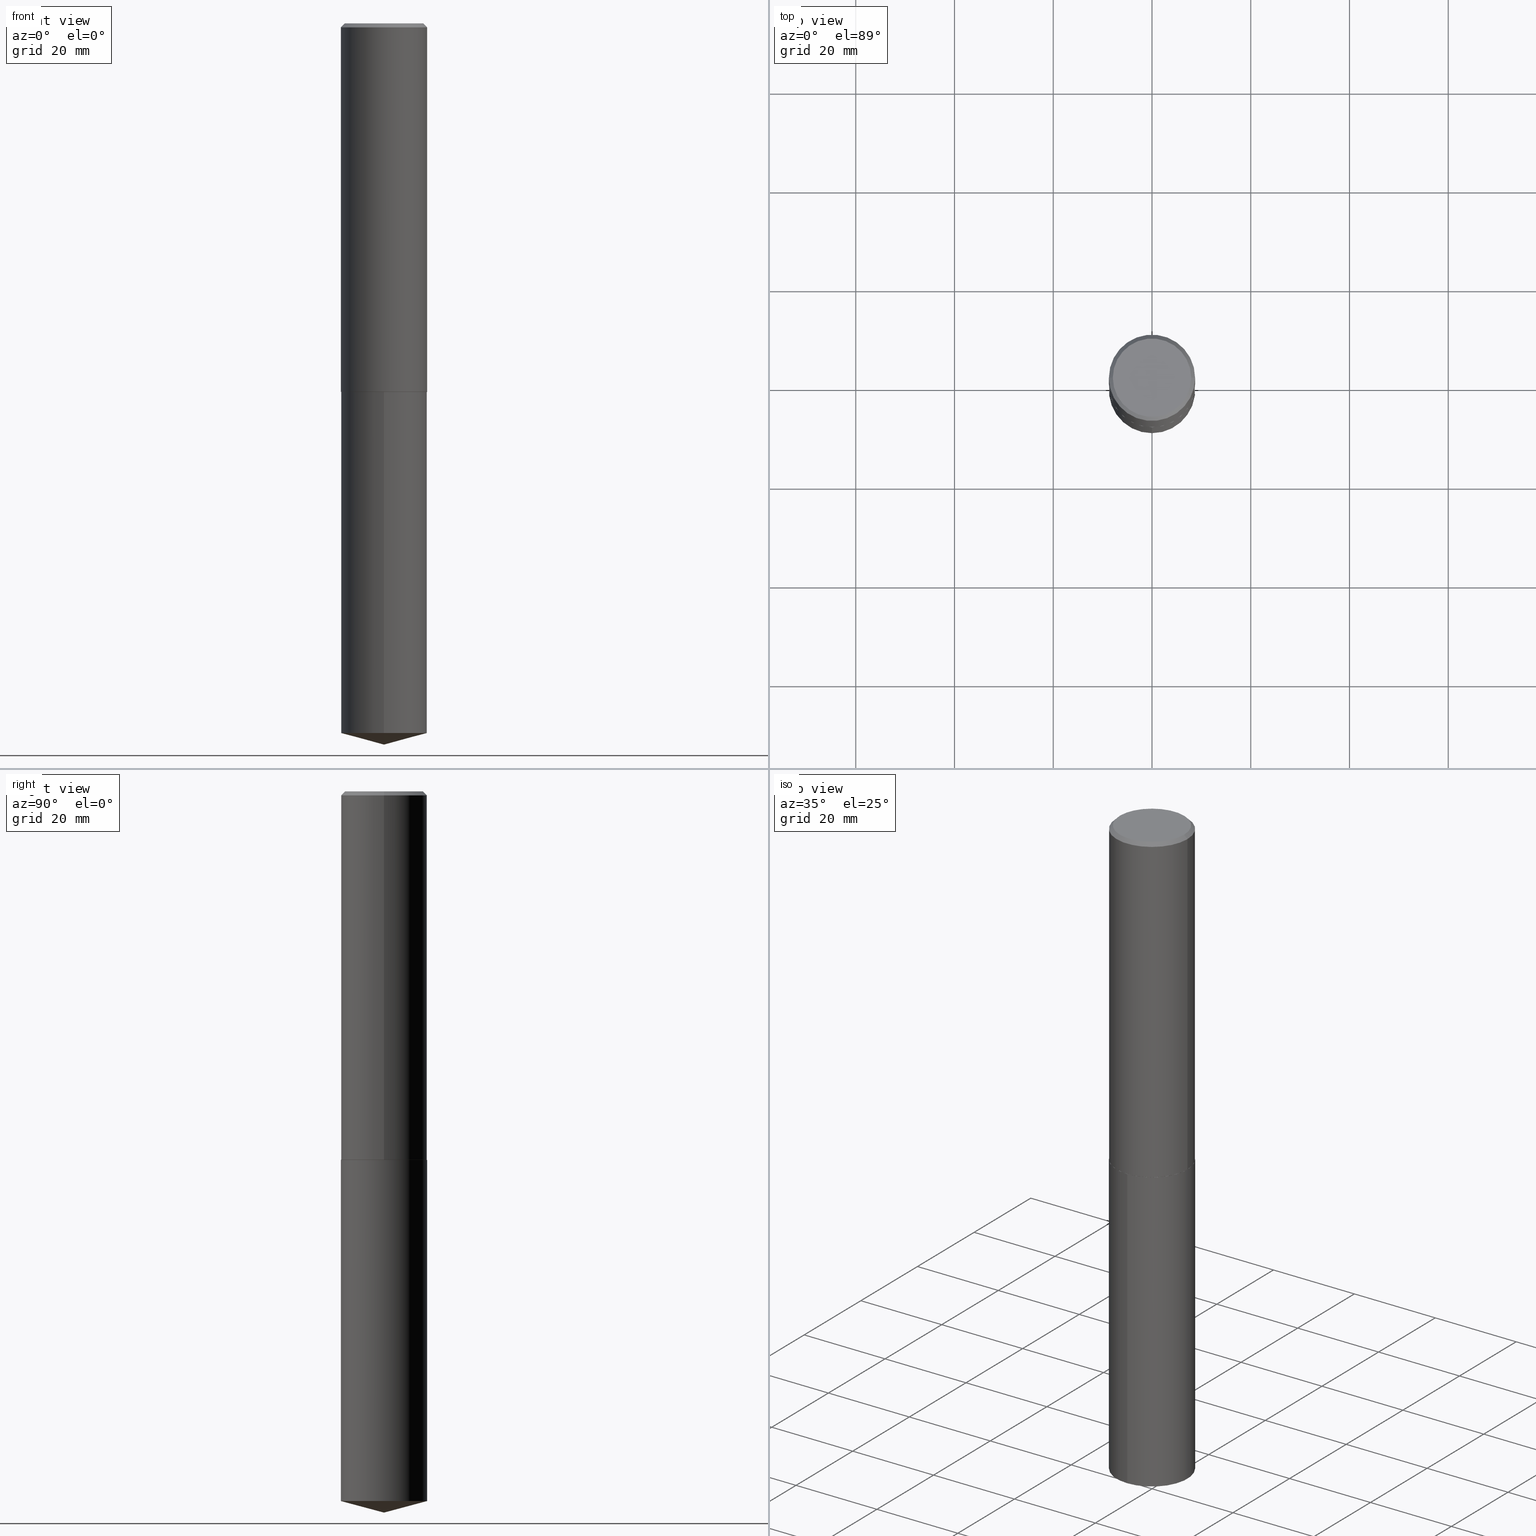
[diagram: canonical four-view strip — front | top / right | iso, engineering-drawing reading convention]
A machine part, canonical four-view strip (front | top / right | iso — engineering-drawing reading convention). The complete STEP part file that produces these views, byte-faithful:
ISO-10303-21;
HEADER;
FILE_DESCRIPTION (( 'STEP AP203' ),
    '1' );
FILE_NAME ('53137.STEP',
    '2024-04-22T19:19:53',
    ( '' ),
    ( '' ),
    'SwSTEP 2.0',
    'SolidWorks 2023',
    '' );
FILE_SCHEMA (( 'CONFIG_CONTROL_DESIGN' ));
ENDSEC;

DATA;
#1 = CALENDAR_DATE ( 2024, 22, 4 ) ;
#2 = DIRECTION ( 'NONE',  ( 1.000000000000000000, -6.982962677686265922E-15, 4.876176775795935793E-29 ) ) ;
#3 = EDGE_LOOP ( 'NONE', ( #117, #319, #236, #143 ) ) ;
#4 = APPROVAL ( #33, 'UNSPECIFIED' ) ;
#5 = SECURITY_CLASSIFICATION_LEVEL ( 'unclassified' ) ;
#6 = DIRECTION ( 'NONE',  ( -2.438088387897960049E-29, 3.491481338843145188E-15, 1.000000000000000000 ) ) ;
#7 = ORIENTED_EDGE ( 'NONE', *, *, #335, .F. ) ;
#8 = CARTESIAN_POINT ( 'NONE',  ( 7.183564618168836511E-29, -1.025622643285173815E-14, -2.937499999999999556 ) ) ;
#9 = AXIS2_PLACEMENT_3D ( 'NONE', #291, #188, #22 ) ;
#10 = ADVANCED_FACE ( 'NONE', ( #171 ), #331, .F. ) ;
#11 = CARTESIAN_POINT ( 'NONE',  ( -2.400393420454582001E-15, -0.3437500000000102141, -2.937499999999998224 ) ) ;
#12 = EDGE_LOOP ( 'NONE', ( #83, #203, #77, #316 ) ) ;
#13 = DIRECTION ( 'NONE',  ( -6.982962677686265922E-15, -1.000000000000000000, 3.510303681827556025E-15 ) ) ;
#14 = ORIENTED_EDGE ( 'NONE', *, *, #256, .T. ) ;
#15 = DIRECTION ( 'NONE',  ( -6.982962677686265922E-15, -1.000000000000000000, 3.178877665354778874E-15 ) ) ;
#16 = ORIENTED_EDGE ( 'NONE', *, *, #370, .T. ) ;
#17 = VECTOR ( 'NONE', #377, 39.37007874015748143 ) ;
#18 = ORGANIZATION ( 'UNSPECIFIED', 'UNSPECIFIED', '' ) ;
#19 = LINE ( 'NONE', #151, #317 ) ;
#20 = ORIENTED_EDGE ( 'NONE', *, *, #130, .T. ) ;
#21 = EDGE_CURVE ( 'NONE', #345, #51, #268, .T. ) ;
#22 = DIRECTION ( 'NONE',  ( -6.982962677686265922E-15, -1.000000000000000000, 3.510303681827556025E-15 ) ) ;
#23 = DIRECTION ( 'NONE',  ( -6.982962677686265922E-15, -1.000000000000000000, 3.178877665354778874E-15 ) ) ;
#24 = VERTEX_POINT ( 'NONE', #362 ) ;
#25 = CARTESIAN_POINT ( 'NONE',  ( 0.3437500000000001110, -2.400393420454654971E-15, 1.676185766679853419E-29 ) ) ;
#26 = AXIS2_PLACEMENT_3D ( 'NONE', #373, #315, #52 ) ;
#27 = AXIS2_PLACEMENT_3D ( 'NONE', #384, #267, #295 ) ;
#28 = LOCAL_TIME ( 15, 19, 53.00000000000000000, #41 ) ;
#29 = EDGE_CURVE ( 'NONE', #146, #374, #221, .T. ) ;
#30 = CARTESIAN_POINT ( 'NONE',  ( 0.000000000000000000, 0.000000000000000000, 0.000000000000000000 ) ) ;
#31 = DIRECTION ( 'NONE',  ( -2.445019328993523323E-29, 3.492125015764188805E-15, 1.000000000000000000 ) ) ;
#32 = EDGE_CURVE ( 'NONE', #366, #51, #164, .T. ) ;
#33 = APPROVAL_STATUS ( 'not_yet_approved' ) ;
#34 = LOCAL_TIME ( 15, 19, 53.00000000000000000, #192 ) ;
#35 = DATE_TIME_ROLE ( 'creation_date' ) ;
#36 = CARTESIAN_POINT ( 'NONE',  ( 7.642090019328592152E-31, -1.091087918388488541E-16, -0.03125000000000015959 ) ) ;
#37 = PERSON_AND_ORGANIZATION ( #230, #18 ) ;
#38 = ORIENTED_EDGE ( 'NONE', *, *, #247, .T. ) ;
#39 = DATE_TIME_ROLE ( 'classification_date' ) ;
#40 = VERTEX_POINT ( 'NONE', #388 ) ;
#41 = COORDINATED_UNIVERSAL_TIME_OFFSET ( 5, 0, .BEHIND. ) ;
#42 = ORIENTED_EDGE ( 'NONE', *, *, #304, .T. ) ;
#43 = ADVANCED_FACE ( 'NONE', ( #104 ), #71, .T. ) ;
#44 = DIRECTION ( 'NONE',  ( 1.000000000000000000, -6.982962677686266711E-15, 4.876176775795935793E-29 ) ) ;
#45 = CIRCLE ( 'NONE', #96, 0.3437500000000000000 ) ;
#46 = LOCAL_TIME ( 15, 19, 53.00000000000000000, #195 ) ;
#47 = VERTEX_POINT ( 'NONE', #285 ) ;
#48 = DIRECTION ( 'NONE',  ( 1.000000000000000000, -6.982962677686265133E-15, 0.000000000000000000 ) ) ;
#49 = ORIENTED_EDGE ( 'NONE', *, *, #170, .F. ) ;
#50 = DIRECTION ( 'NONE',  ( -6.982962677686265922E-15, -1.000000000000000000, 3.178877665354778874E-15 ) ) ;
#51 = VERTEX_POINT ( 'NONE', #86 ) ;
#52 = DIRECTION ( 'NONE',  ( -1.000000000000000000, 6.982962677686265922E-15, 0.000000000000000000 ) ) ;
#53 = CC_DESIGN_PERSON_AND_ORGANIZATION_ASSIGNMENT ( #106, #162, ( #74 ) ) ;
#54 = ORIENTED_EDGE ( 'NONE', *, *, #256, .F. ) ;
#55 = DIRECTION ( 'NONE',  ( 0.000000000000000000, 0.000000000000000000, 1.000000000000000000 ) ) ;
#56 = LENGTH_MEASURE_WITH_UNIT ( LENGTH_MEASURE( 0.02539999999999999897 ), #354 );
#57 = MANIFOLD_SOLID_BREP ( 'Body-Move/Copy2[1]', #257 ) ;
#58 = EDGE_CURVE ( 'NONE', #123, #286, #185, .T. ) ;
#59 = AXIS2_PLACEMENT_3D ( 'NONE', #8, #229, #48 ) ;
#60 = AXIS2_PLACEMENT_3D ( 'NONE', #191, #246, #88 ) ;
#61 =( CONVERSION_BASED_UNIT ( 'INCH', #56 ) LENGTH_UNIT ( ) NAMED_UNIT ( #386 ) );
#62 = CALENDAR_DATE ( 2024, 22, 4 ) ;
#63 = CC_DESIGN_DATE_AND_TIME_ASSIGNMENT ( #300, #35, ( #217 ) ) ;
#64 = PRODUCT_DEFINITION_SHAPE ( 'NONE', 'NONE',  #217 ) ;
#65 = CC_DESIGN_APPROVAL ( #4, ( #74 ) ) ;
#66 = FACE_OUTER_BOUND ( 'NONE', #153, .T. ) ;
#67 = CARTESIAN_POINT ( 'NONE',  ( 0.3437500000000002776, -1.265487411263697241E-14, -2.936999999999999389 ) ) ;
#68 = MANIFOLD_SOLID_BREP ( 'Body-Move/Copy2[2]', #350 ) ;
#69 = CALENDAR_DATE ( 2024, 22, 4 ) ;
#70 = DIRECTION ( 'NONE',  ( -6.982962677686265922E-15, -1.000000000000000000, 3.178877665354778874E-15 ) ) ;
#71 = CYLINDRICAL_SURFACE ( 'NONE', #357, 0.3437500000000000000 ) ;
#72 = CARTESIAN_POINT ( 'NONE',  ( 7.182341883765743709E-29, -1.025448069218231586E-14, -2.936999999999999389 ) ) ;
#73 = DIRECTION ( 'NONE',  ( -0.7071067811865453523, 2.468850131082234184E-15, -0.7071067811865496822 ) ) ;
#74 = PRODUCT_DEFINITION_FORMATION_WITH_SPECIFIED_SOURCE ( 'ANY', '', #302, .NOT_KNOWN. ) ;
#75 = EDGE_LOOP ( 'NONE', ( #199, #133, #20, #150 ) ) ;
#76 = LINE ( 'NONE', #314, #351 ) ;
#77 = ORIENTED_EDGE ( 'NONE', *, *, #175, .F. ) ;
#78 = PLANE ( 'NONE',  #381 ) ;
#79 = ORIENTED_EDGE ( 'NONE', *, *, #29, .F. ) ;
#80 = AXIS2_PLACEMENT_3D ( 'NONE', #318, #31, #23 ) ;
#81 = CARTESIAN_POINT ( 'NONE',  ( -8.220042202271889093E-28, 1.174074088014212760E-13, 33.62007874015748143 ) ) ;
#82 = CYLINDRICAL_SURFACE ( 'NONE', #166, 0.3437500000000000000 ) ;
#83 = ORIENTED_EDGE ( 'NONE', *, *, #335, .T. ) ;
#84 = DIRECTION ( 'NONE',  ( -2.445468806185136597E-29, 3.491481338843145583E-15, 1.000000000000000000 ) ) ;
#85 = EDGE_CURVE ( 'NONE', #24, #146, #253, .T. ) ;
#86 = CARTESIAN_POINT ( 'NONE',  ( -0.3437500000000000000, -2.739304087835236119E-15, -0.03125000000000015959 ) ) ;
#87 = ORIENTED_EDGE ( 'NONE', *, *, #329, .T. ) ;
#88 = DIRECTION ( 'NONE',  ( 1.000000000000000000, -6.982962677686266711E-15, 4.876176775795935793E-29 ) ) ;
#89 = DIRECTION ( 'NONE',  ( -2.445019328993523323E-29, 3.492125015764188805E-15, 1.000000000000000000 ) ) ;
#90 = ORIENTED_EDGE ( 'NONE', *, *, #190, .T. ) ;
#91 = AXIS2_PLACEMENT_3D ( 'NONE', #376, #263, #372 ) ;
#92 = CARTESIAN_POINT ( 'NONE',  ( -1.871772216193328825E-46, 2.672394653685608435E-32, 7.654042494670956004E-18 ) ) ;
#93 = EDGE_CURVE ( 'NONE', #123, #40, #45, .T. ) ;
#94 = LINE ( 'NONE', #128, #327 ) ;
#95 =( NAMED_UNIT ( * ) SI_UNIT ( $, .STERADIAN. ) SOLID_ANGLE_UNIT ( ) );
#96 = AXIS2_PLACEMENT_3D ( 'NONE', #283, #140, #15 ) ;
#97 = PERSON_AND_ORGANIZATION_ROLE ( 'design_owner' ) ;
#98 = CALENDAR_DATE ( 2024, 22, 4 ) ;
#99 = EDGE_CURVE ( 'NONE', #47, #374, #159, .T. ) ;
#100 = UNCERTAINTY_MEASURE_WITH_UNIT (LENGTH_MEASURE( 1.000000000000000082E-05 ), #61, 'distance_accuracy_value', 'NONE');
#101 = APPROVAL_DATE_TIME ( #326, #325 ) ;
#102 = DIRECTION ( 'NONE',  ( 2.445019328993523042E-29, -3.492125015764188805E-15, -1.000000000000000000 ) ) ;
#103 = CIRCLE ( 'NONE', #296, 0.3437500000000000000 ) ;
#104 = FACE_OUTER_BOUND ( 'NONE', #75, .T. ) ;
#105 = EDGE_CURVE ( 'NONE', #51, #345, #147, .T. ) ;
#106 = PERSON_AND_ORGANIZATION ( #230, #18 ) ;
#107 = DIRECTION ( 'NONE',  ( 1.000000000000000000, -6.982962677686265922E-15, 0.000000000000000000 ) ) ;
#108 = DATE_AND_TIME ( #1, #288 ) ;
#109 = CONICAL_SURFACE ( 'NONE', #9, 146.9311341562585369, 1.308996938995753201 ) ;
#110 = ADVANCED_FACE ( 'NONE', ( #148 ), #78, .F. ) ;
#111 = APPROVAL_PERSON_ORGANIZATION ( #158, #279, #276 ) ;
#112 = DIRECTION ( 'NONE',  ( -2.445019328993523042E-29, 3.492125015764188805E-15, 1.000000000000000000 ) ) ;
#113 = CARTESIAN_POINT ( 'NONE',  ( 0.000000000000000000, 0.000000000000000000, 0.000000000000000000 ) ) ;
#114 = ORIENTED_EDGE ( 'NONE', *, *, #32, .F. ) ;
#115 = FACE_OUTER_BOUND ( 'NONE', #228, .T. ) ;
#116 = CC_DESIGN_APPROVAL ( #325, ( #333 ) ) ;
#117 = ORIENTED_EDGE ( 'NONE', *, *, #225, .T. ) ;
#118 = LINE ( 'NONE', #237, #244 ) ;
#119 = DIRECTION ( 'NONE',  ( 1.000000000000000000, -6.982962677686269077E-15, 0.000000000000000000 ) ) ;
#120 = ORIENTED_EDGE ( 'NONE', *, *, #361, .T. ) ;
#121 = CARTESIAN_POINT ( 'NONE',  ( -1.871772216193328825E-46, 2.672394653685608435E-32, 7.654042494670956004E-18 ) ) ;
#122 = CARTESIAN_POINT ( 'NONE',  ( 7.182341883765743709E-29, -1.025448069218231586E-14, -2.936999999999999389 ) ) ;
#123 = VERTEX_POINT ( 'NONE', #207 ) ;
#124 = CARTESIAN_POINT ( 'NONE',  ( 2.442490654175483228E-15, 0.3437499999999897304, -2.937500000000000444 ) ) ;
#125 = ADVANCED_FACE ( 'NONE', ( #348 ), #368, .T. ) ;
#126 = PLANE ( 'NONE',  #375 ) ;
#127 = VERTEX_POINT ( 'NONE', #11 ) ;
#128 = CARTESIAN_POINT ( 'NONE',  ( 0.3437500000000000000, -2.467404978572812681E-15, -0.03125000000000015959 ) ) ;
#129 = CARTESIAN_POINT ( 'NONE',  ( 7.183564618168836511E-29, -1.025622643285173815E-14, -2.937499999999999556 ) ) ;
#130 = EDGE_CURVE ( 'NONE', #40, #127, #144, .T. ) ;
#131 = DIRECTION ( 'NONE',  ( 1.000000000000000000, -6.982962677686266711E-15, 4.876090663923400070E-29 ) ) ;
#132 = APPROVAL_ROLE ( '' ) ;
#133 = ORIENTED_EDGE ( 'NONE', *, *, #93, .T. ) ;
#134 = PERSON_AND_ORGANIZATION ( #230, #18 ) ;
#135 = ADVANCED_FACE ( 'NONE', ( #341 ), #176, .T. ) ;
#136 = ORIENTED_EDGE ( 'NONE', *, *, #225, .F. ) ;
#137 = CONICAL_SURFACE ( 'NONE', #365, 0.3437500000000000000, 0.7853981633974452814 ) ;
#138 = ADVANCED_FACE ( 'NONE', ( #115 ), #210, .T. ) ;
#139 = AXIS2_PLACEMENT_3D ( 'NONE', #122, #198, #201 ) ;
#140 = DIRECTION ( 'NONE',  ( -2.445019328993523323E-29, 3.492125015764188805E-15, 1.000000000000000000 ) ) ;
#141 = ADVANCED_BREP_SHAPE_REPRESENTATION ( '53137', ( #57, #68, #352 ), #274 ) ;
#142 = CARTESIAN_POINT ( 'NONE',  ( -2.400393420454582001E-15, -0.3437500000000102141, -2.937499999999998224 ) ) ;
#143 = ORIENTED_EDGE ( 'NONE', *, *, #355, .F. ) ;
#144 = LINE ( 'NONE', #142, #17 ) ;
#145 = CC_DESIGN_PERSON_AND_ORGANIZATION_ASSIGNMENT ( #134, #307, ( #333 ) ) ;
#146 = VERTEX_POINT ( 'NONE', #241 ) ;
#147 = CIRCLE ( 'NONE', #364, 0.3437500000000000000 ) ;
#148 = FACE_OUTER_BOUND ( 'NONE', #342, .T. ) ;
#149 = CC_DESIGN_APPROVAL ( #279, ( #217 ) ) ;
#150 = ORIENTED_EDGE ( 'NONE', *, *, #190, .F. ) ;
#151 = CARTESIAN_POINT ( 'NONE',  ( -0.3437500000000001110, 2.442490654175345178E-15, -1.690883937275124476E-29 ) ) ;
#152 = DIRECTION ( 'NONE',  ( -2.445468806185136597E-29, 3.491481338843145583E-15, 1.000000000000000000 ) ) ;
#153 = EDGE_LOOP ( 'NONE', ( #180, #260, #197, #214 ) ) ;
#154 = DIRECTION ( 'NONE',  ( 1.000000000000000000, -6.982962677686265133E-15, 0.000000000000000000 ) ) ;
#155 = CIRCLE ( 'NONE', #273, 0.3432500000000007767 ) ;
#156 = CYLINDRICAL_SURFACE ( 'NONE', #60, 0.3437500000000001110 ) ;
#157 = ADVANCED_FACE ( 'NONE', ( #259 ), #269, .T. ) ;
#158 = PERSON_AND_ORGANIZATION ( #230, #18 ) ;
#159 = CIRCLE ( 'NONE', #139, 0.3437500000000002776 ) ;
#160 = APPROVAL_PERSON_ORGANIZATION ( #385, #325, #132 ) ;
#161 = COORDINATED_UNIVERSAL_TIME_OFFSET ( 5, 0, .BEHIND. ) ;
#162 = PERSON_AND_ORGANIZATION_ROLE ( 'design_supplier' ) ;
#163 = ADVANCED_FACE ( 'NONE', ( #369 ), #82, .T. ) ;
#164 = LINE ( 'NONE', #277, #389 ) ;
#165 = CALENDAR_DATE ( 2024, 22, 4 ) ;
#166 = AXIS2_PLACEMENT_3D ( 'NONE', #204, #312, #50 ) ;
#167 = PERSON_AND_ORGANIZATION ( #230, #18 ) ;
#168 = APPROVAL_PERSON_ORGANIZATION ( #37, #4, #193 ) ;
#169 = CARTESIAN_POINT ( 'NONE',  ( 7.183564618168836511E-29, -1.025622643285173815E-14, -2.937499999999999556 ) ) ;
#170 = EDGE_CURVE ( 'NONE', #47, #51, #19, .T. ) ;
#171 = FACE_OUTER_BOUND ( 'NONE', #177, .T. ) ;
#172 = AXIS2_PLACEMENT_3D ( 'NONE', #81, #89, #13 ) ;
#173 = DIRECTION ( 'NONE',  ( -2.445468806185136597E-29, 3.491481338843145583E-15, 1.000000000000000000 ) ) ;
#174 = ORIENTED_EDGE ( 'NONE', *, *, #329, .F. ) ;
#175 = EDGE_CURVE ( 'NONE', #127, #286, #233, .T. ) ;
#176 = CYLINDRICAL_SURFACE ( 'NONE', #280, 0.3437500000000001110 ) ;
#177 = EDGE_LOOP ( 'NONE', ( #349, #90 ) ) ;
#178 = CARTESIAN_POINT ( 'NONE',  ( 1.405886114171275833E-28, -2.007971884064408741E-14, -5.750000000000000000 ) ) ;
#179 = DIRECTION ( 'NONE',  ( -2.445019328993523323E-29, 3.492125015764188805E-15, 1.000000000000000000 ) ) ;
#180 = ORIENTED_EDGE ( 'NONE', *, *, #370, .F. ) ;
#181 = CIRCLE ( 'NONE', #91, 0.3437500000000002776 ) ;
#182 = CARTESIAN_POINT ( 'NONE',  ( 2.442490654175415781E-15, 0.3437499999999897304, -2.937500000000000444 ) ) ;
#183 = ORIENTED_EDGE ( 'NONE', *, *, #240, .F. ) ;
#184 = ADVANCED_FACE ( 'NONE', ( #266 ), #126, .F. ) ;
#185 = LINE ( 'NONE', #182, #339 ) ;
#186 = FACE_OUTER_BOUND ( 'NONE', #194, .T. ) ;
#187 = DESIGN_CONTEXT ( 'detailed design', #202, 'design' ) ;
#188 = DIRECTION ( 'NONE',  ( -2.445019328993523323E-29, 3.492125015764188805E-15, 1.000000000000000000 ) ) ;
#189 = DIRECTION ( 'NONE',  ( 1.000000000000000000, 0.000000000000000000, 0.000000000000000000 ) ) ;
#190 = EDGE_CURVE ( 'NONE', #286, #127, #103, .T. ) ;
#191 = CARTESIAN_POINT ( 'NONE',  ( 0.000000000000000000, 0.000000000000000000, 0.000000000000000000 ) ) ;
#192 = COORDINATED_UNIVERSAL_TIME_OFFSET ( 5, 0, .BEHIND. ) ;
#193 = APPROVAL_ROLE ( '' ) ;
#194 = EDGE_LOOP ( 'NONE', ( #49, #328, #284, #313 ) ) ;
#195 = COORDINATED_UNIVERSAL_TIME_OFFSET ( 5, 0, .BEHIND. ) ;
#196 = CIRCLE ( 'NONE', #27, 0.3437500000000000000 ) ;
#197 = ORIENTED_EDGE ( 'NONE', *, *, #29, .T. ) ;
#198 = DIRECTION ( 'NONE',  ( -2.445468806185136597E-29, 3.491481338843145583E-15, 1.000000000000000000 ) ) ;
#199 = ORIENTED_EDGE ( 'NONE', *, *, #58, .F. ) ;
#200 = ADVANCED_FACE ( 'NONE', ( #66 ), #249, .T. ) ;
#201 = DIRECTION ( 'NONE',  ( 1.000000000000000000, -6.982962677686269077E-15, 0.000000000000000000 ) ) ;
#202 = APPLICATION_CONTEXT ( 'configuration controlled 3d designs of mechanical parts and assemblies' ) ;
#203 = ORIENTED_EDGE ( 'NONE', *, *, #58, .T. ) ;
#204 = CARTESIAN_POINT ( 'NONE',  ( 7.183564618168836511E-29, -1.025622643285173815E-14, -2.937499999999999556 ) ) ;
#205 = ORIENTED_EDGE ( 'NONE', *, *, #361, .F. ) ;
#206 = DIRECTION ( 'NONE',  ( 1.000000000000000000, -6.982962677686266711E-15, 4.876090663923400070E-29 ) ) ;
#207 = CARTESIAN_POINT ( 'NONE',  ( 2.442490654175483228E-15, 0.3437499999999802935, -5.657892465101804547 ) ) ;
#208 = ORIENTED_EDGE ( 'NONE', *, *, #247, .F. ) ;
#209 = DIRECTION ( 'NONE',  ( -0.7071067811860646257, 7.493145998868609200E-15, 0.7071067811870304087 ) ) ;
#210 = CONICAL_SURFACE ( 'NONE', #172, 146.9311341562585369, 1.308996938995753201 ) ;
#211 = DIRECTION ( 'NONE',  ( -2.445468806185136877E-29, 3.491481338843145188E-15, 1.000000000000000000 ) ) ;
#212 = VECTOR ( 'NONE', #209, 39.37007874015748143 ) ;
#213 = ADVANCED_FACE ( 'NONE', ( #367 ), #137, .T. ) ;
#214 = ORIENTED_EDGE ( 'NONE', *, *, #99, .F. ) ;
#215 = CARTESIAN_POINT ( 'NONE',  ( -0.3437500000000002776, -7.811990038006968315E-15, -2.936999999999999389 ) ) ;
#216 = DIRECTION ( 'NONE',  ( -2.445468806185136877E-29, 3.491481338843145188E-15, 1.000000000000000000 ) ) ;
#217 = PRODUCT_DEFINITION ( 'UNKNOWN', '', #74, #187 ) ;
#218 = AXIS2_PLACEMENT_3D ( 'NONE', #72, #305, #255 ) ;
#219 = APPLICATION_PROTOCOL_DEFINITION ( 'international standard', 'config_control_design', 1994, #202 ) ;
#220 = SHAPE_DEFINITION_REPRESENTATION ( #64, #141 ) ;
#221 = LINE ( 'NONE', #67, #222 ) ;
#222 = VECTOR ( 'NONE', #224, 39.37007874015748143 ) ;
#223 = VECTOR ( 'NONE', #216, 39.37007874015748143 ) ;
#224 = DIRECTION ( 'NONE',  ( 0.7071067811860646257, -2.468850131077198884E-15, 0.7071067811870304087 ) ) ;
#225 = EDGE_CURVE ( 'NONE', #374, #47, #181, .T. ) ;
#226 = VERTEX_POINT ( 'NONE', #178 ) ;
#227 = CARTESIAN_POINT ( 'NONE',  ( 7.642090019328592152E-31, -1.091087918388488541E-16, -0.03125000000000015959 ) ) ;
#228 = EDGE_LOOP ( 'NONE', ( #183, #14, #232 ) ) ;
#229 = DIRECTION ( 'NONE',  ( -2.445468806185136597E-29, 3.491481338843145583E-15, 1.000000000000000000 ) ) ;
#230 = PERSON ( 'UNSPECIFIED', 'UNSPECIFIED', 'UNSPECIFIED', ('UNSPECIFIED'), ('UNSPECIFIED'), ('UNSPECIFIED') ) ;
#231 = DIRECTION ( 'NONE',  ( -6.982962677686265922E-15, -1.000000000000000000, 3.178877665354778874E-15 ) ) ;
#232 = ORIENTED_EDGE ( 'NONE', *, *, #93, .F. ) ;
#233 = CIRCLE ( 'NONE', #80, 0.3437500000000000000 ) ;
#234 = CIRCLE ( 'NONE', #245, 0.3125000000000000000 ) ;
#235 = DIRECTION ( 'NONE',  ( 1.000000000000000000, -6.982962677686265922E-15, 0.000000000000000000 ) ) ;
#236 = ORIENTED_EDGE ( 'NONE', *, *, #21, .F. ) ;
#237 = CARTESIAN_POINT ( 'NONE',  ( 1.406152497584686674E-28, -2.007593723873295754E-14, -5.750000000000000000 ) ) ;
#238 = ORIENTED_EDGE ( 'NONE', *, *, #304, .F. ) ;
#239 = DIRECTION ( 'NONE',  ( -1.000000000000000000, 6.982962677686265922E-15, 0.000000000000000000 ) ) ;
#240 = EDGE_CURVE ( 'NONE', #226, #123, #118, .T. ) ;
#241 = CARTESIAN_POINT ( 'NONE',  ( 0.3432500000000007767, -1.265312837196755327E-14, -2.937499999999999556 ) ) ;
#242 = LINE ( 'NONE', #215, #212 ) ;
#243 = AXIS2_PLACEMENT_3D ( 'NONE', #252, #102, #281 ) ;
#244 = VECTOR ( 'NONE', #343, 39.37007874015748143 ) ;
#245 = AXIS2_PLACEMENT_3D ( 'NONE', #92, #382, #131 ) ;
#246 = DIRECTION ( 'NONE',  ( -2.445468806185136597E-29, 3.491481338843145583E-15, 1.000000000000000000 ) ) ;
#247 = EDGE_CURVE ( 'NONE', #378, #366, #287, .T. ) ;
#248 = APPLICATION_PROTOCOL_DEFINITION ( 'international standard', 'config_control_design', 1994, #358 ) ;
#249 = CONICAL_SURFACE ( 'NONE', #218, 0.3437500000000002776, 0.7853981633967653808 ) ;
#250 = DATE_AND_TIME ( #69, #34 ) ;
#251 = DIRECTION ( 'NONE',  ( -2.445468806185136597E-29, 3.491481338843145583E-15, 1.000000000000000000 ) ) ;
#252 = CARTESIAN_POINT ( 'NONE',  ( 7.183564618168836511E-29, -1.025622643285173815E-14, -2.937499999999999556 ) ) ;
#253 = CIRCLE ( 'NONE', #59, 0.3432500000000007767 ) ;
#254 = PERSON_AND_ORGANIZATION ( #230, #18 ) ;
#255 = DIRECTION ( 'NONE',  ( 1.000000000000000000, -6.982962677686269077E-15, 0.000000000000000000 ) ) ;
#256 = EDGE_CURVE ( 'NONE', #226, #40, #76, .T. ) ;
#257 = CLOSED_SHELL ( 'NONE', ( #163, #293, #138, #43, #10 ) ) ;
#258 = CC_DESIGN_PERSON_AND_ORGANIZATION_ASSIGNMENT ( #254, #387, ( #74 ) ) ;
#259 = FACE_OUTER_BOUND ( 'NONE', #390, .T. ) ;
#260 = ORIENTED_EDGE ( 'NONE', *, *, #85, .T. ) ;
#261 = ORIENTED_EDGE ( 'NONE', *, *, #32, .T. ) ;
#262 = PRODUCT_RELATED_PRODUCT_CATEGORY ( 'detail', '', ( #302 ) ) ;
#263 = DIRECTION ( 'NONE',  ( -2.445468806185136597E-29, 3.491481338843145583E-15, 1.000000000000000000 ) ) ;
#264 = ORIENTED_EDGE ( 'NONE', *, *, #21, .T. ) ;
#265 = CARTESIAN_POINT ( 'NONE',  ( 0.3437500000000000000, -2.509502212293502494E-15, -0.03125000000000015959 ) ) ;
#266 = FACE_OUTER_BOUND ( 'NONE', #292, .T. ) ;
#267 = DIRECTION ( 'NONE',  ( -2.445019328993523323E-29, 3.492125015764188805E-15, 1.000000000000000000 ) ) ;
#268 = CIRCLE ( 'NONE', #299, 0.3437500000000000000 ) ;
#269 = CONICAL_SURFACE ( 'NONE', #322, 0.3437500000000002776, 0.7853981633967653808 ) ;
#270 = CARTESIAN_POINT ( 'NONE',  ( -0.3125000000000000000, 2.236730232696381714E-15, 7.654042494655503883E-18 ) ) ;
#271 = CARTESIAN_POINT ( 'NONE',  ( 0.3437500000000002776, -1.265487411263697241E-14, -2.936999999999999389 ) ) ;
#272 = APPROVAL_STATUS ( 'not_yet_approved' ) ;
#273 = AXIS2_PLACEMENT_3D ( 'NONE', #324, #152, #154 ) ;
#274 =( GEOMETRIC_REPRESENTATION_CONTEXT ( 3 ) GLOBAL_UNCERTAINTY_ASSIGNED_CONTEXT ( ( #100 ) ) GLOBAL_UNIT_ASSIGNED_CONTEXT ( ( #61, #294, #95 ) ) REPRESENTATION_CONTEXT ( 'NONE', 'WORKASPACE' ) );
#275 = DATE_AND_TIME ( #98, #46 ) ;
#276 = APPROVAL_ROLE ( '' ) ;
#277 = CARTESIAN_POINT ( 'NONE',  ( -0.3437500000000000000, 2.291284628615805081E-15, -0.03125000000000015959 ) ) ;
#278 = DIRECTION ( 'NONE',  ( -2.445019328993523323E-29, 3.492125015764188805E-15, 1.000000000000000000 ) ) ;
#279 = APPROVAL ( #272, 'UNSPECIFIED' ) ;
#280 = AXIS2_PLACEMENT_3D ( 'NONE', #113, #173, #44 ) ;
#281 = DIRECTION ( 'NONE',  ( 6.982962677686265922E-15, 1.000000000000000000, -3.492125015764188805E-15 ) ) ;
#282 = DIRECTION ( 'NONE',  ( -2.445468806185136597E-29, 3.491481338843145583E-15, 1.000000000000000000 ) ) ;
#283 = CARTESIAN_POINT ( 'NONE',  ( 1.383497677779108676E-28, -1.975617701293015879E-14, -5.657892465101803658 ) ) ;
#284 = ORIENTED_EDGE ( 'NONE', *, *, #355, .T. ) ;
#285 = CARTESIAN_POINT ( 'NONE',  ( -0.3437500000000002776, -7.811990038006968315E-15, -2.936999999999999389 ) ) ;
#286 = VERTEX_POINT ( 'NONE', #124 ) ;
#287 = CIRCLE ( 'NONE', #332, 0.3125000000000000000 ) ;
#288 = LOCAL_TIME ( 15, 19, 53.00000000000000000, #161 ) ;
#289 = CARTESIAN_POINT ( 'NONE',  ( 7.182341883765743709E-29, -1.025448069218231586E-14, -2.936999999999999389 ) ) ;
#290 = ORIENTED_EDGE ( 'NONE', *, *, #105, .T. ) ;
#291 = CARTESIAN_POINT ( 'NONE',  ( -8.220042202271889093E-28, 1.174074088014212760E-13, 33.62007874015748143 ) ) ;
#292 = EDGE_LOOP ( 'NONE', ( #174, #306 ) ) ;
#293 = ADVANCED_FACE ( 'NONE', ( #346 ), #109, .T. ) ;
#294 =( NAMED_UNIT ( * ) PLANE_ANGLE_UNIT ( ) SI_UNIT ( $, .RADIAN. ) );
#295 = DIRECTION ( 'NONE',  ( -6.982962677686265922E-15, -1.000000000000000000, 3.178877665354778874E-15 ) ) ;
#296 = AXIS2_PLACEMENT_3D ( 'NONE', #330, #278, #70 ) ;
#297 = PERSON_AND_ORGANIZATION ( #230, #18 ) ;
#298 = APPROVAL_DATE_TIME ( #250, #279 ) ;
#299 = AXIS2_PLACEMENT_3D ( 'NONE', #36, #251, #107 ) ;
#300 = DATE_AND_TIME ( #62, #28 ) ;
#301 = EDGE_LOOP ( 'NONE', ( #208, #42, #264, #114 ) ) ;
#302 = PRODUCT ( '53137', '53137', '', ( #356 ) ) ;
#303 = PERSON_AND_ORGANIZATION_ROLE ( 'creator' ) ;
#304 = EDGE_CURVE ( 'NONE', #378, #345, #94, .T. ) ;
#305 = DIRECTION ( 'NONE',  ( -2.445468806185136597E-29, 3.491481338843145583E-15, 1.000000000000000000 ) ) ;
#306 = ORIENTED_EDGE ( 'NONE', *, *, #85, .F. ) ;
#307 = PERSON_AND_ORGANIZATION_ROLE ( 'classification_officer' ) ;
#308 = EDGE_LOOP ( 'NONE', ( #54, #371, #7 ) ) ;
#309 = CARTESIAN_POINT ( 'NONE',  ( -9.358861080966644125E-47, 1.336197326842804217E-32, 3.827021247335478002E-18 ) ) ;
#310 = LOCAL_TIME ( 15, 19, 53.00000000000000000, #360 ) ;
#311 = DIRECTION ( 'NONE',  ( -2.445468806185136597E-29, 3.491481338843145583E-15, 1.000000000000000000 ) ) ;
#312 = DIRECTION ( 'NONE',  ( -2.445019328993523323E-29, 3.492125015764188805E-15, 1.000000000000000000 ) ) ;
#313 = ORIENTED_EDGE ( 'NONE', *, *, #105, .F. ) ;
#314 = CARTESIAN_POINT ( 'NONE',  ( 1.405886114171275609E-28, -2.007971884064408741E-14, -5.750000000000000000 ) ) ;
#315 = DIRECTION ( 'NONE',  ( 2.445468806185136597E-29, -3.491481338843145583E-15, -1.000000000000000000 ) ) ;
#316 = ORIENTED_EDGE ( 'NONE', *, *, #130, .F. ) ;
#317 = VECTOR ( 'NONE', #211, 39.37007874015748143 ) ;
#318 = CARTESIAN_POINT ( 'NONE',  ( 7.183564618168836511E-29, -1.025622643285173815E-14, -2.937499999999999556 ) ) ;
#319 = ORIENTED_EDGE ( 'NONE', *, *, #170, .T. ) ;
#320 = CC_DESIGN_PERSON_AND_ORGANIZATION_ASSIGNMENT ( #167, #303, ( #217 ) ) ;
#321 = CARTESIAN_POINT ( 'NONE',  ( 0.3125000000000000000, -2.305655301438208344E-15, 7.654042494686648481E-18 ) ) ;
#322 = AXIS2_PLACEMENT_3D ( 'NONE', #289, #282, #119 ) ;
#323 = CC_DESIGN_SECURITY_CLASSIFICATION ( #333, ( #74 ) ) ;
#324 = CARTESIAN_POINT ( 'NONE',  ( 7.183564618168836511E-29, -1.025622643285173815E-14, -2.937499999999999556 ) ) ;
#325 = APPROVAL ( #363, 'UNSPECIFIED' ) ;
#326 = DATE_AND_TIME ( #165, #310 ) ;
#327 = VECTOR ( 'NONE', #353, 39.37007874015748143 ) ;
#328 = ORIENTED_EDGE ( 'NONE', *, *, #99, .T. ) ;
#329 = EDGE_CURVE ( 'NONE', #146, #24, #155, .T. ) ;
#330 = CARTESIAN_POINT ( 'NONE',  ( 7.183564618168836511E-29, -1.025622643285173815E-14, -2.937499999999999556 ) ) ;
#331 = PLANE ( 'NONE',  #243 ) ;
#332 = AXIS2_PLACEMENT_3D ( 'NONE', #121, #84, #206 ) ;
#333 = SECURITY_CLASSIFICATION ( '', '', #5 ) ;
#334 = DIRECTION ( 'NONE',  ( 2.445468806185136597E-29, -3.491481338843145583E-15, -1.000000000000000000 ) ) ;
#335 = EDGE_CURVE ( 'NONE', #40, #123, #196, .T. ) ;
#336 = CARTESIAN_POINT ( 'NONE',  ( 7.642090019328592152E-31, -1.091087918388488541E-16, -0.03125000000000015959 ) ) ;
#337 = DIRECTION ( 'NONE',  ( -1.000000000000000000, 6.982962677686265922E-15, -4.876176775795935793E-29 ) ) ;
#338 = EDGE_LOOP ( 'NONE', ( #238, #205, #261, #290 ) ) ;
#339 = VECTOR ( 'NONE', #112, 39.37007874015748143 ) ;
#340 = CC_DESIGN_PERSON_AND_ORGANIZATION_ASSIGNMENT ( #297, #97, ( #302 ) ) ;
#341 = FACE_OUTER_BOUND ( 'NONE', #3, .T. ) ;
#342 = EDGE_LOOP ( 'NONE', ( #120, #38 ) ) ;
#343 = DIRECTION ( 'NONE',  ( 6.863315791527703726E-15, 0.9659258262890707547, 0.2588190451025115801 ) ) ;
#344 = DIRECTION ( 'NONE',  ( 2.438088387897960049E-29, -3.491481338843145188E-15, -1.000000000000000000 ) ) ;
#345 = VERTEX_POINT ( 'NONE', #265 ) ;
#346 = FACE_OUTER_BOUND ( 'NONE', #308, .T. ) ;
#347 = ADVANCED_FACE ( 'NONE', ( #186 ), #156, .T. ) ;
#348 = FACE_OUTER_BOUND ( 'NONE', #301, .T. ) ;
#349 = ORIENTED_EDGE ( 'NONE', *, *, #175, .T. ) ;
#350 = CLOSED_SHELL ( 'NONE', ( #125, #135, #157, #184, #200, #347, #213, #110 ) ) ;
#351 = VECTOR ( 'NONE', #379, 39.37007874015748143 ) ;
#352 = AXIS2_PLACEMENT_3D ( 'NONE', #30, #55, #189 ) ;
#353 = DIRECTION ( 'NONE',  ( 0.7071067811865453523, -7.319954787623248157E-15, -0.7071067811865496822 ) ) ;
#354 =( LENGTH_UNIT ( ) NAMED_UNIT ( * ) SI_UNIT ( $, .METRE. ) );
#355 = EDGE_CURVE ( 'NONE', #374, #345, #380, .T. ) ;
#356 = MECHANICAL_CONTEXT ( 'NONE', #358, 'mechanical' ) ;
#357 = AXIS2_PLACEMENT_3D ( 'NONE', #169, #179, #231 ) ;
#358 = APPLICATION_CONTEXT ( 'configuration controlled 3d designs of mechanical parts and assemblies' ) ;
#359 = APPROVAL_DATE_TIME ( #108, #4 ) ;
#360 = COORDINATED_UNIVERSAL_TIME_OFFSET ( 5, 0, .BEHIND. ) ;
#361 = EDGE_CURVE ( 'NONE', #366, #378, #234, .T. ) ;
#362 = CARTESIAN_POINT ( 'NONE',  ( -0.3432500000000007767, -7.814639265181078728E-15, -2.937499999999999556 ) ) ;
#363 = APPROVAL_STATUS ( 'not_yet_approved' ) ;
#364 = AXIS2_PLACEMENT_3D ( 'NONE', #336, #311, #235 ) ;
#365 = AXIS2_PLACEMENT_3D ( 'NONE', #227, #334, #239 ) ;
#366 = VERTEX_POINT ( 'NONE', #270 ) ;
#367 = FACE_OUTER_BOUND ( 'NONE', #338, .T. ) ;
#368 = CONICAL_SURFACE ( 'NONE', #26, 0.3437500000000000000, 0.7853981633974452814 ) ;
#369 = FACE_OUTER_BOUND ( 'NONE', #12, .T. ) ;
#370 = EDGE_CURVE ( 'NONE', #24, #47, #242, .T. ) ;
#371 = ORIENTED_EDGE ( 'NONE', *, *, #240, .T. ) ;
#372 = DIRECTION ( 'NONE',  ( 1.000000000000000000, -6.982962677686269077E-15, 0.000000000000000000 ) ) ;
#373 = CARTESIAN_POINT ( 'NONE',  ( 7.642090019328592152E-31, -1.091087918388488541E-16, -0.03125000000000015959 ) ) ;
#374 = VERTEX_POINT ( 'NONE', #271 ) ;
#375 = AXIS2_PLACEMENT_3D ( 'NONE', #129, #6, #2 ) ;
#376 = CARTESIAN_POINT ( 'NONE',  ( 7.182341883765743709E-29, -1.025448069218231586E-14, -2.936999999999999389 ) ) ;
#377 = DIRECTION ( 'NONE',  ( -2.445019328993523042E-29, 3.492125015764188805E-15, 1.000000000000000000 ) ) ;
#378 = VERTEX_POINT ( 'NONE', #321 ) ;
#379 = DIRECTION ( 'NONE',  ( -6.745023994389849388E-15, -0.9659258262890689783, 0.2588190451025183525 ) ) ;
#380 = LINE ( 'NONE', #25, #223 ) ;
#381 = AXIS2_PLACEMENT_3D ( 'NONE', #309, #344, #337 ) ;
#382 = DIRECTION ( 'NONE',  ( -2.445468806185136597E-29, 3.491481338843145583E-15, 1.000000000000000000 ) ) ;
#383 = CC_DESIGN_DATE_AND_TIME_ASSIGNMENT ( #275, #39, ( #333 ) ) ;
#384 = CARTESIAN_POINT ( 'NONE',  ( 1.383497677779108676E-28, -1.975617701293015879E-14, -5.657892465101803658 ) ) ;
#385 = PERSON_AND_ORGANIZATION ( #230, #18 ) ;
#386 = DIMENSIONAL_EXPONENTS ( 1.000000000000000000, 0.000000000000000000, 0.000000000000000000, 0.000000000000000000, 0.000000000000000000, 0.000000000000000000, 0.000000000000000000 ) ;
#387 = PERSON_AND_ORGANIZATION_ROLE ( 'creator' ) ;
#388 = CARTESIAN_POINT ( 'NONE',  ( -2.400393420454516131E-15, -0.3437500000000198730, -5.657892465101801882 ) ) ;
#389 = VECTOR ( 'NONE', #73, 39.37007874015748143 ) ;
#390 = EDGE_LOOP ( 'NONE', ( #87, #16, #136, #79 ) ) ;
ENDSEC;
END-ISO-10303-21;
